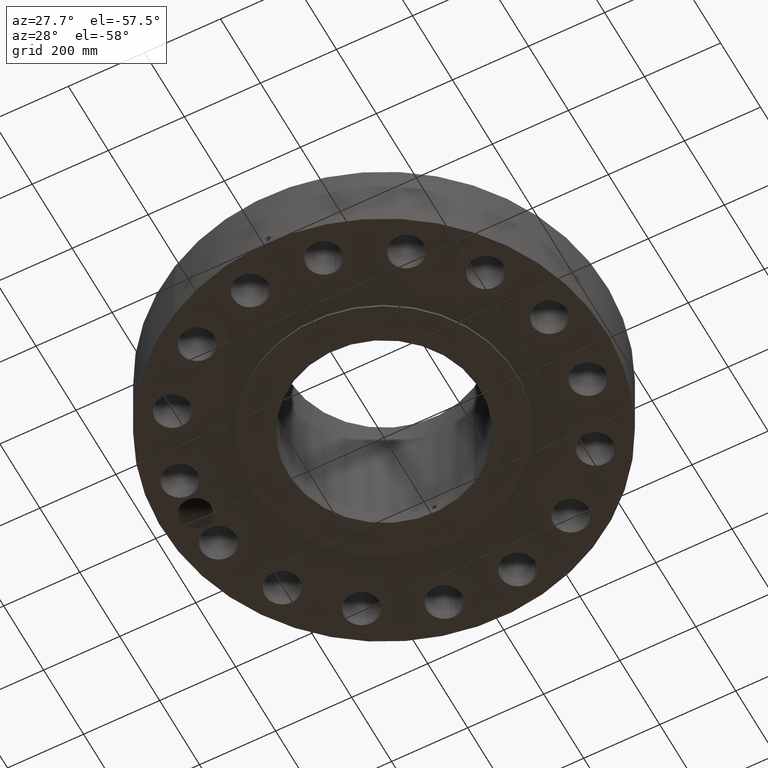
[diagram: clean part render]
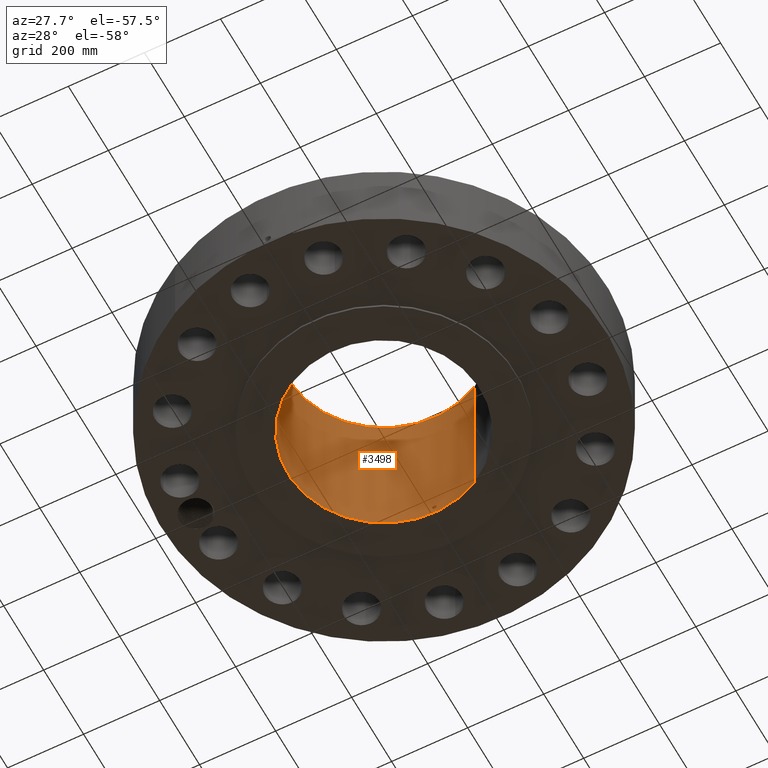
[diagram: same view with one face highlighted and labeled with its STEP entity id]
A machine part, auxiliary view. The second image highlights one B-rep face of the part: STEP entity #3498.
In plain terms, the highlighted cylindrical surface (partial cylindrical patch) has radius 252.425 mm, axis along (0, 0, -1).
Its self-contained STEP definition (entity closure, byte-faithful):
#2635=AXIS2_PLACEMENT_3D('Circle Axis2P3D',#2633,#2634,$) ;
#3375=AXIS2_PLACEMENT_3D('Cylinder Axis2P3D',#3372,#3373,#3374) ;
#3447=AXIS2_PLACEMENT_3D('Circle Axis2P3D',#3445,#3446,$) ;
#2628=CARTESIAN_POINT('Vertex',(4.76453100267,8.7214155001,-8.50413353036E-014)) ;
#2630=CARTESIAN_POINT('Vertex',(-4.76453100267,-8.7214155001,-8.50413353036E-014)) ;
#2633=CARTESIAN_POINT('Axis2P3D Location',(0.,0.,0.)) ;
#3372=CARTESIAN_POINT('Axis2P3D Location',(0.,0.,8.12500000003)) ;
#3381=CARTESIAN_POINT('Vertex',(4.76453100267,8.7214155001,16.2500000001)) ;
#3383=CARTESIAN_POINT('Vertex',(-4.76453100267,-8.7214155001,16.2500000001)) ;
#3386=CARTESIAN_POINT('Line Origine',(4.76453100267,8.7214155001,8.12500000003)) ;
#3391=CARTESIAN_POINT('Line Origine',(-4.76453100267,-8.7214155001,8.12500000003)) ;
#3445=CARTESIAN_POINT('Axis2P3D Location',(0.,0.,16.2500000001)) ;
#3457=CARTESIAN_POINT('Control Point',(0.219395640473,9.93557796777,1.05985638466)) ;
#3458=CARTESIAN_POINT('Control Point',(0.194442872208,9.9361289703,1.10553212059)) ;
#3459=CARTESIAN_POINT('Control Point',(0.157604598207,9.9368640535,1.14471246857)) ;
#3460=CARTESIAN_POINT('Control Point',(0.111106273167,9.9375789718,1.17324381716)) ;
#3461=CARTESIAN_POINT('Control Point',(0.0336708302626,9.93814777344,1.19588295045)) ;
#3462=CARTESIAN_POINT('Control Point',(-0.0446741095707,9.93795119262,1.18805595679)) ;
#3463=CARTESIAN_POINT('Control Point',(-0.0703047246277,9.93779858744,1.18204279642)) ;
#3464=CARTESIAN_POINT('Control Point',(-0.143961922134,9.93712423715,1.15420880066)) ;
#3465=CARTESIAN_POINT('Control Point',(-0.203250205921,9.93602356076,1.09949060063)) ;
#3466=CARTESIAN_POINT('Control Point',(-0.232214224152,9.93530171075,1.05324887181)) ;
#3467=CARTESIAN_POINT('Control Point',(-0.255841287054,9.93470839823,0.975103138514)) ;
#3468=CARTESIAN_POINT('Control Point',(-0.248281402673,9.93489808343,0.895741061073)) ;
#3469=CARTESIAN_POINT('Control Point',(-0.242047658772,9.93505676195,0.869180778043)) ;
#3470=CARTESIAN_POINT('Control Point',(-0.232314627638,9.93529269303,0.843791662735)) ;
#3471=CARTESIAN_POINT('Control Point',(-0.219395640474,9.93557796777,0.820143615352)) ;
#3472=CARTESIAN_POINT('Vertex',(0.219395640473,9.93557796777,1.05985638466)) ;
#3474=CARTESIAN_POINT('Vertex',(-0.219395640473,9.93557796777,0.820143615352)) ;
#3478=CARTESIAN_POINT('Control Point',(-0.219395640473,9.93557796777,0.820143615352)) ;
#3479=CARTESIAN_POINT('Control Point',(-0.194442872233,9.9361289703,0.774467879466)) ;
#3480=CARTESIAN_POINT('Control Point',(-0.157604598282,9.9368640535,0.735287531514)) ;
#3481=CARTESIAN_POINT('Control Point',(-0.111106273062,9.9375789718,0.706756182816)) ;
#3482=CARTESIAN_POINT('Control Point',(-0.0336708302252,9.93814777344,0.684117049563)) ;
#3483=CARTESIAN_POINT('Control Point',(0.0446741095396,9.93795119262,0.691944043215)) ;
#3484=CARTESIAN_POINT('Control Point',(0.070304724656,9.93779858744,0.697957203597)) ;
#3485=CARTESIAN_POINT('Control Point',(0.143961922097,9.93712423715,0.725791199337)) ;
#3486=CARTESIAN_POINT('Control Point',(0.203250205842,9.93602356076,0.780509399302)) ;
#3487=CARTESIAN_POINT('Control Point',(0.232214224181,9.93530171075,0.826751128301)) ;
#3488=CARTESIAN_POINT('Control Point',(0.25584128705,9.93470839823,0.904896861546)) ;
#3489=CARTESIAN_POINT('Control Point',(0.248281402672,9.93489808343,0.984258938937)) ;
#3490=CARTESIAN_POINT('Control Point',(0.242047658772,9.93505676195,1.01081922196)) ;
#3491=CARTESIAN_POINT('Control Point',(0.232314627639,9.93529269303,1.03620833727)) ;
#3492=CARTESIAN_POINT('Control Point',(0.219395640473,9.93557796777,1.05985638466)) ;
#2634=DIRECTION('Axis2P3D Direction',(0.,0.,-0.0393700787402)) ;
#3373=DIRECTION('Axis2P3D Direction',(0.,0.,-0.0393700787402)) ;
#3374=DIRECTION('Axis2P3D XDirection',(-0.0188750212049,-0.0345504945626,0.)) ;
#3387=DIRECTION('Vector Direction',(0.,0.,-0.0393700787402)) ;
#3392=DIRECTION('Vector Direction',(0.,0.,-0.0393700787402)) ;
#3446=DIRECTION('Axis2P3D Direction',(0.,0.,-0.0393700787402)) ;
#3388=VECTOR('Line Direction',#3387,0.0393700787402) ;
#3393=VECTOR('Line Direction',#3392,0.0393700787402) ;
#3451=ORIENTED_EDGE('',*,*,#3449,.F.) ;
#3452=ORIENTED_EDGE('',*,*,#3395,.T.) ;
#3453=ORIENTED_EDGE('',*,*,#2637,.T.) ;
#3454=ORIENTED_EDGE('',*,*,#3390,.F.) ;
#3495=ORIENTED_EDGE('',*,*,#3476,.F.) ;
#3496=ORIENTED_EDGE('',*,*,#3493,.F.) ;
#3497=FACE_BOUND('',#3494,.T.) ;
#3498=ADVANCED_FACE('PartBody',(#3455,#3497),#3376,.F.) ;
#3456=B_SPLINE_CURVE_WITH_KNOTS('',5,(#3457,#3458,#3459,#3460,#3461,#3462,#3463,#3464,#3465,#3466,#3467,#3468,#3469,#3470,#3471),.UNSPECIFIED.,.F.,.U.,(6,3,3,3,6),(0.,9.34847181314,14.022943317,23.3729854092,28.2130410728),.UNSPECIFIED.) ;
#3477=B_SPLINE_CURVE_WITH_KNOTS('',5,(#3478,#3479,#3480,#3481,#3482,#3483,#3484,#3485,#3486,#3487,#3488,#3489,#3490,#3491,#3492),.UNSPECIFIED.,.F.,.U.,(6,3,3,3,6),(0.,9.34847180363,14.0229433048,23.3729853877,28.2130410515),.UNSPECIFIED.) ;
#2636=CIRCLE('generated circle',#2635,9.93800000004) ;
#3448=CIRCLE('generated circle',#3447,9.93800000004) ;
#3376=CYLINDRICAL_SURFACE('generated cylinder',#3375,9.93800000004) ;
#2637=EDGE_CURVE('',#2631,#2629,#2636,.T.) ;
#3390=EDGE_CURVE('',#3382,#2629,#3389,.T.) ;
#3395=EDGE_CURVE('',#3384,#2631,#3394,.T.) ;
#3449=EDGE_CURVE('',#3384,#3382,#3448,.T.) ;
#3476=EDGE_CURVE('',#3473,#3475,#3456,.T.) ;
#3493=EDGE_CURVE('',#3475,#3473,#3477,.T.) ;
#3450=EDGE_LOOP('',(#3451,#3452,#3453,#3454)) ;
#3494=EDGE_LOOP('',(#3495,#3496)) ;
#3455=FACE_OUTER_BOUND('',#3450,.T.) ;
#3389=LINE('Line',#3386,#3388) ;
#3394=LINE('Line',#3391,#3393) ;
#2629=VERTEX_POINT('',#2628) ;
#2631=VERTEX_POINT('',#2630) ;
#3382=VERTEX_POINT('',#3381) ;
#3384=VERTEX_POINT('',#3383) ;
#3473=VERTEX_POINT('',#3472) ;
#3475=VERTEX_POINT('',#3474) ;